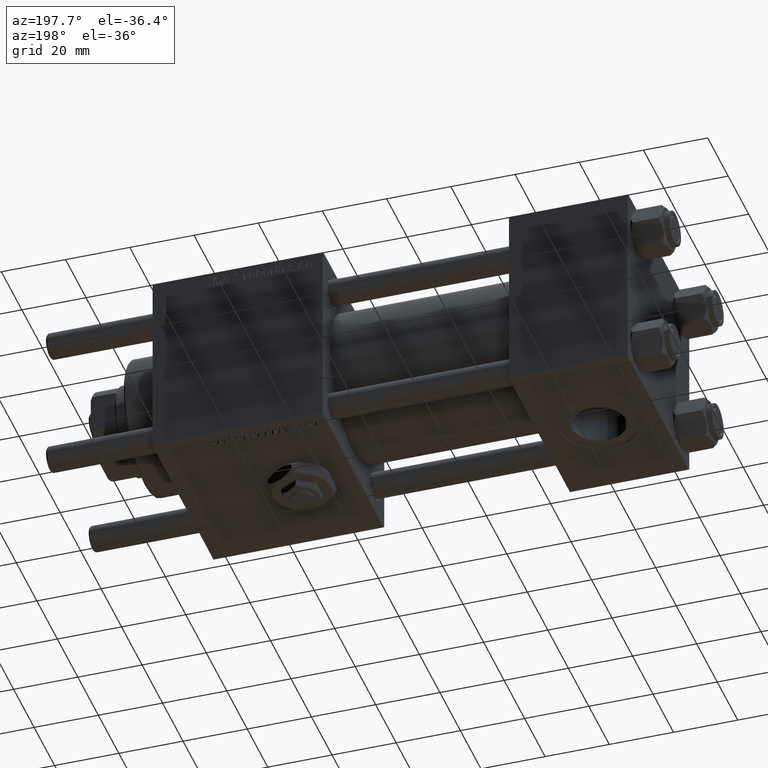
[diagram: clean part render]
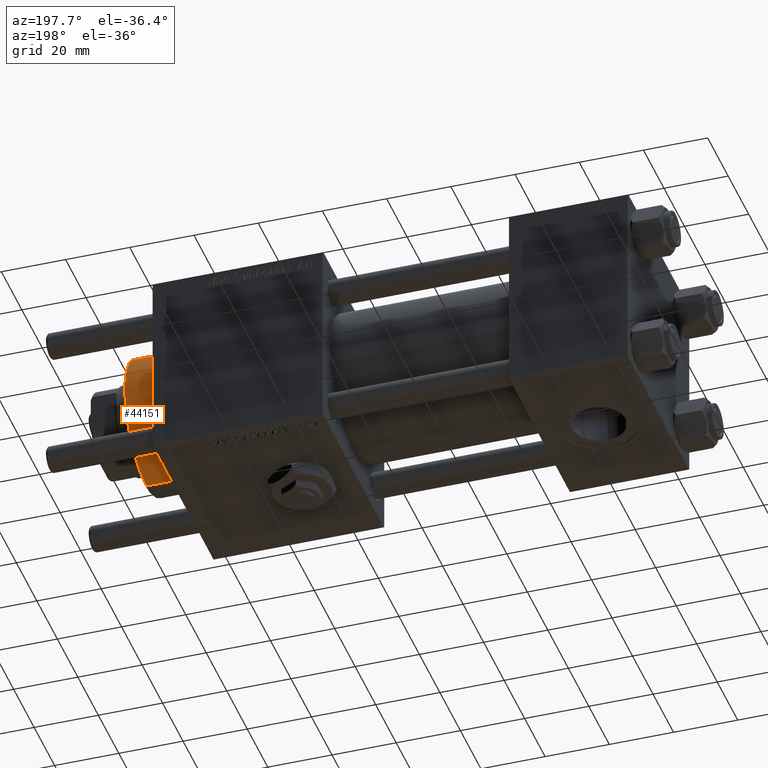
[diagram: same view with one face highlighted and labeled with its STEP entity id]
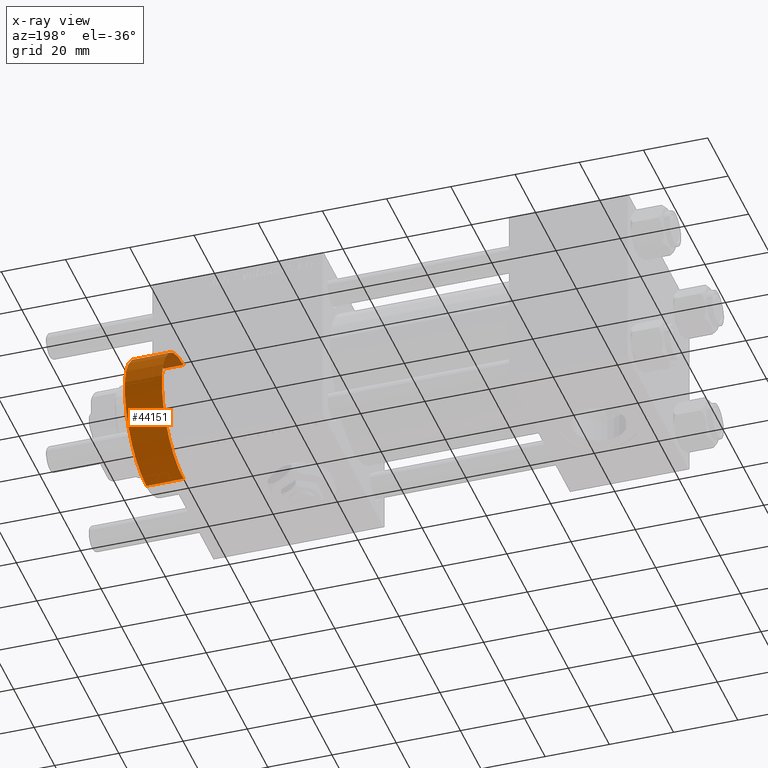
[diagram: x-ray of the same camera — body ghosted, the highlighted face saturated]
A machine part, auxiliary view. The second image highlights one B-rep face of the part: STEP entity #44151.
The next image is the same camera in x-ray: the body ghosted, the highlighted face saturated — about 4% of this face is hidden behind the body in this view.
In plain terms, the highlighted cylindrical surface (partial cylindrical patch) has radius 21 mm, axis along (-1, -0, 0).
Its self-contained STEP definition (entity closure, byte-faithful):
#3052 = CARTESIAN_POINT ( 'NONE',  ( 21.00000000000000000, 2.571758278209441661E-15, 40.70000000000000284 ) ) ;
#3992 = AXIS2_PLACEMENT_3D ( 'NONE', #7091, #10986, #43398 ) ;
#4555 = CARTESIAN_POINT ( 'NONE',  ( 21.00000000000000000, 2.571758278209441661E-15, 40.19999999999998863 ) ) ;
#4600 = ORIENTED_EDGE ( 'NONE', *, *, #49851, .T. ) ;
#7046 = ORIENTED_EDGE ( 'NONE', *, *, #56250, .T. ) ;
#7091 = CARTESIAN_POINT ( 'NONE',  ( 0.000000000000000000, 0.000000000000000000, 28.69999999999999929 ) ) ;
#7859 = AXIS2_PLACEMENT_3D ( 'NONE', #19165, #24219, #32848 ) ;
#10986 = DIRECTION ( 'NONE',  ( 0.000000000000000000, 0.000000000000000000, 1.000000000000000000 ) ) ;
#12251 = EDGE_CURVE ( 'NONE', #13750, #20946, #44615, .T. ) ;
#12291 = LINE ( 'NONE', #3052, #27745 ) ;
#13750 = VERTEX_POINT ( 'NONE', #40699 ) ;
#17156 = VECTOR ( 'NONE', #54169, 1000.000000000000000 ) ;
#19165 = CARTESIAN_POINT ( 'NONE',  ( 0.000000000000000000, 0.000000000000000000, 40.19999999999998863 ) ) ;
#20245 = CIRCLE ( 'NONE', #7859, 21.00000000000000000 ) ;
#20946 = VERTEX_POINT ( 'NONE', #37792 ) ;
#24219 = DIRECTION ( 'NONE',  ( 0.000000000000000000, 0.000000000000000000, -1.000000000000000000 ) ) ;
#25610 = FACE_OUTER_BOUND ( 'NONE', #45308, .T. ) ;
#27745 = VECTOR ( 'NONE', #31025, 1000.000000000000000 ) ;
#30652 = CYLINDRICAL_SURFACE ( 'NONE', #33378, 21.00000000000000000 ) ;
#31025 = DIRECTION ( 'NONE',  ( -0.000000000000000000, -0.000000000000000000, -1.000000000000000000 ) ) ;
#31226 = CARTESIAN_POINT ( 'NONE',  ( -21.00000000000000000, 0.000000000000000000, 40.70000000000000284 ) ) ;
#32506 = CIRCLE ( 'NONE', #3992, 21.00000000000000000 ) ;
#32848 = DIRECTION ( 'NONE',  ( 1.000000000000000000, 0.000000000000000000, 0.000000000000000000 ) ) ;
#33378 = AXIS2_PLACEMENT_3D ( 'NONE', #34823, #53286, #35415 ) ;
#34823 = CARTESIAN_POINT ( 'NONE',  ( 0.000000000000000000, 0.000000000000000000, 40.70000000000000284 ) ) ;
#35415 = DIRECTION ( 'NONE',  ( -1.000000000000000000, 0.000000000000000000, 0.000000000000000000 ) ) ;
#35838 = VERTEX_POINT ( 'NONE', #49965 ) ;
#37496 = ORIENTED_EDGE ( 'NONE', *, *, #55830, .T. ) ;
#37792 = CARTESIAN_POINT ( 'NONE',  ( -21.00000000000000000, 0.000000000000000000, 28.69999999999999929 ) ) ;
#40699 = CARTESIAN_POINT ( 'NONE',  ( -21.00000000000000000, 0.000000000000000000, 40.19999999999998863 ) ) ;
#43398 = DIRECTION ( 'NONE',  ( 1.000000000000000000, 0.000000000000000000, 0.000000000000000000 ) ) ;
#44151 = ADVANCED_FACE ( 'NONE', ( #25610 ), #30652, .T. ) ;
#44615 = LINE ( 'NONE', #31226, #17156 ) ;
#45308 = EDGE_LOOP ( 'NONE', ( #4600, #37496, #7046, #54582 ) ) ;
#45943 = VERTEX_POINT ( 'NONE', #4555 ) ;
#49851 = EDGE_CURVE ( 'NONE', #13750, #45943, #20245, .T. ) ;
#49965 = CARTESIAN_POINT ( 'NONE',  ( 21.00000000000000000, 2.571758278209441661E-15, 28.69999999999999929 ) ) ;
#53286 = DIRECTION ( 'NONE',  ( -0.000000000000000000, -0.000000000000000000, -1.000000000000000000 ) ) ;
#54169 = DIRECTION ( 'NONE',  ( -0.000000000000000000, -0.000000000000000000, -1.000000000000000000 ) ) ;
#54582 = ORIENTED_EDGE ( 'NONE', *, *, #12251, .F. ) ;
#55830 = EDGE_CURVE ( 'NONE', #45943, #35838, #12291, .T. ) ;
#56250 = EDGE_CURVE ( 'NONE', #35838, #20946, #32506, .T. ) ;